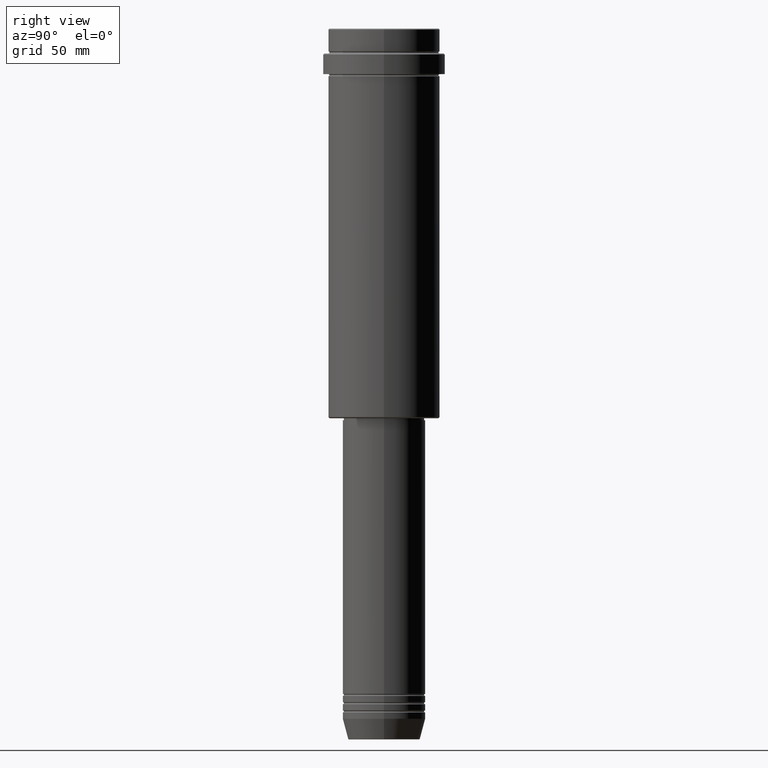
[diagram: clean part render]
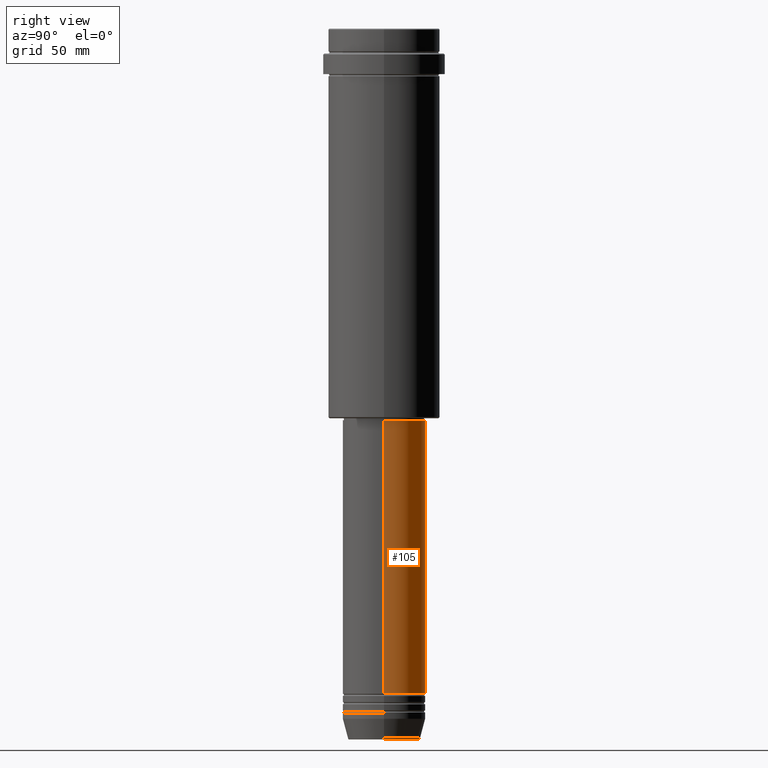
[diagram: same view with one face highlighted and labeled with its STEP entity id]
A machine part, right view. The second image highlights one B-rep face of the part: STEP entity #105.
In plain terms, the highlighted cylindrical surface (partial cylindrical patch) has radius 20 mm, axis along (-0, -0, 1).
Its self-contained STEP definition (entity closure, byte-faithful):
#43 = CARTESIAN_POINT ( 'NONE',  ( 20.00000000000000000, 0.000000000000000000, 0.000000000000000000 ) ) ;
#105 = ADVANCED_FACE ( 'NONE', ( #154 ), #571, .T. ) ;
#153 = DIRECTION ( 'NONE',  ( 1.000000000000000000, 0.000000000000000000, 0.000000000000000000 ) ) ;
#154 = FACE_OUTER_BOUND ( 'NONE', #193, .T. ) ;
#176 = CARTESIAN_POINT ( 'NONE',  ( 20.00000000000000000, 0.000000000000000000, -320.9999999999998863 ) ) ;
#183 = AXIS2_PLACEMENT_3D ( 'NONE', #198, #439, #628 ) ;
#193 = EDGE_LOOP ( 'NONE', ( #696, #1364, #992, #1135 ) ) ;
#198 = CARTESIAN_POINT ( 'NONE',  ( 0.000000000000000000, 0.000000000000000000, -188.9999999999999432 ) ) ;
#238 = CARTESIAN_POINT ( 'NONE',  ( -20.00000000000000000, 2.449293598294706513E-15, 0.000000000000000000 ) ) ;
#242 = DIRECTION ( 'NONE',  ( -0.000000000000000000, -0.000000000000000000, 1.000000000000000000 ) ) ;
#329 = VECTOR ( 'NONE', #674, 1000.000000000000000 ) ;
#402 = EDGE_CURVE ( 'NONE', #1070, #1380, #1137, .T. ) ;
#408 = CARTESIAN_POINT ( 'NONE',  ( -20.00000000000000000, 2.449293598294706513E-15, -320.9999999999998863 ) ) ;
#439 = DIRECTION ( 'NONE',  ( -0.000000000000000000, -0.000000000000000000, 1.000000000000000000 ) ) ;
#457 = VECTOR ( 'NONE', #942, 1000.000000000000000 ) ;
#498 = EDGE_CURVE ( 'NONE', #765, #1221, #812, .T. ) ;
#571 = CYLINDRICAL_SURFACE ( 'NONE', #1020, 20.00000000000000000 ) ;
#628 = DIRECTION ( 'NONE',  ( 1.000000000000000000, 0.000000000000000000, 0.000000000000000000 ) ) ;
#674 = DIRECTION ( 'NONE',  ( -0.000000000000000000, -0.000000000000000000, 1.000000000000000000 ) ) ;
#696 = ORIENTED_EDGE ( 'NONE', *, *, #498, .T. ) ;
#708 = LINE ( 'NONE', #43, #457 ) ;
#755 = EDGE_CURVE ( 'NONE', #765, #1070, #708, .T. ) ;
#765 = VERTEX_POINT ( 'NONE', #176 ) ;
#788 = CARTESIAN_POINT ( 'NONE',  ( 0.000000000000000000, 0.000000000000000000, 0.000000000000000000 ) ) ;
#804 = DIRECTION ( 'NONE',  ( 1.000000000000000000, 0.000000000000000000, 0.000000000000000000 ) ) ;
#812 = CIRCLE ( 'NONE', #857, 20.00000000000000000 ) ;
#857 = AXIS2_PLACEMENT_3D ( 'NONE', #1345, #1129, #153 ) ;
#942 = DIRECTION ( 'NONE',  ( -0.000000000000000000, -0.000000000000000000, 1.000000000000000000 ) ) ;
#992 = ORIENTED_EDGE ( 'NONE', *, *, #402, .F. ) ;
#1017 = EDGE_CURVE ( 'NONE', #1221, #1380, #1207, .T. ) ;
#1020 = AXIS2_PLACEMENT_3D ( 'NONE', #788, #242, #804 ) ;
#1070 = VERTEX_POINT ( 'NONE', #1362 ) ;
#1129 = DIRECTION ( 'NONE',  ( -0.000000000000000000, -0.000000000000000000, 1.000000000000000000 ) ) ;
#1135 = ORIENTED_EDGE ( 'NONE', *, *, #755, .F. ) ;
#1137 = CIRCLE ( 'NONE', #183, 20.00000000000000000 ) ;
#1207 = LINE ( 'NONE', #238, #329 ) ;
#1208 = CARTESIAN_POINT ( 'NONE',  ( -20.00000000000000000, 2.449293598294706513E-15, -188.9999999999999432 ) ) ;
#1221 = VERTEX_POINT ( 'NONE', #408 ) ;
#1345 = CARTESIAN_POINT ( 'NONE',  ( 0.000000000000000000, 0.000000000000000000, -320.9999999999998863 ) ) ;
#1362 = CARTESIAN_POINT ( 'NONE',  ( 20.00000000000000000, 0.000000000000000000, -188.9999999999999432 ) ) ;
#1364 = ORIENTED_EDGE ( 'NONE', *, *, #1017, .T. ) ;
#1380 = VERTEX_POINT ( 'NONE', #1208 ) ;